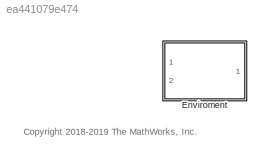
MODEL slx_ea441079e474
KIND library
CONFIG AbsTol = auto
CONFIG EnableMultiTasking = off
CONFIG FixedStep = auto
CONFIG MaxStep = auto
CONFIG MinStep = auto
CONFIG RelTol = 1e-3
CONFIG SampleTimeConstraint = Unconstrained
CONFIG Solver = VariableStepAuto
CONFIG SolverName = VariableStepAuto
CONFIG StartTime = 0.0
CONFIG StopTime = 10.0
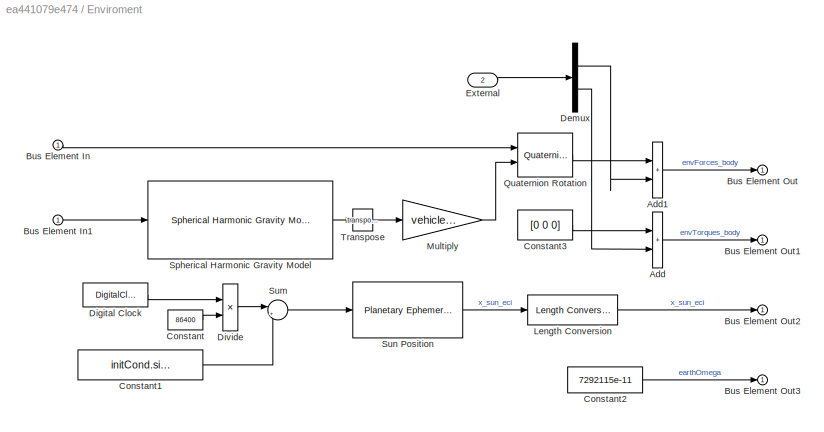
BLOCK [SubSystem] Enviroment
  Ports = [2, 1]
  RequestExecContextInheritance = off
BLOCK [Sum] Enviroment/Add
  IconShape = rectangular
  Ports = [2, 1]
BLOCK [Sum] Enviroment/Add1
  IconShape = rectangular
  Ports = [2, 1]
BLOCK [Inport] Enviroment/Bus Element In
BLOCK [Inport] Enviroment/Bus Element In1
BLOCK [Outport] Enviroment/Bus Element Out
  VectorParamsAs1DForOutWhenUnconnected = off
BLOCK [Outport] Enviroment/Bus Element Out1
  VectorParamsAs1DForOutWhenUnconnected = off
BLOCK [Outport] Enviroment/Bus Element Out2
  VectorParamsAs1DForOutWhenUnconnected = off
BLOCK [Outport] Enviroment/Bus Element Out3
  VectorParamsAs1DForOutWhenUnconnected = off
BLOCK [Constant] Enviroment/Constant
  Value = 86400
BLOCK [Constant] Enviroment/Constant1
  Value = initCond.simStartDate.JD
BLOCK [Constant] Enviroment/Constant2
  Value = 7292115e-11
BLOCK [Constant] Enviroment/Constant3
  Value = [0 0 0]
BLOCK [Demux] Enviroment/Demux
  Outputs = 2
  Ports = [1, 2]
BLOCK [DigitalClock] Enviroment/Digital Clock
  SampleTime = CubeSatTimeStep
BLOCK [Product] Enviroment/Divide
  Inputs = */
  Ports = [2, 1]
BLOCK [Inport] Enviroment/External
  Port = 2
BLOCK [Reference] Enviroment/Length Conversion  REF=aerolibconvert2/Length Conversion
  Ports = [1, 1]
  SourceBlock = aerolibconvert2/Length Conversion
  SourceProductBaseCode = AE
  SourceType = Length Conversion
BLOCK [Gain] Enviroment/Multiply
  Gain = vehicle.mass
BLOCK [Reference] Enviroment/Quaternion Rotation  REF=aerolibutil/Quaternion
Rotation
  Ports = [2, 1]
  SourceBlock = aerolibutil/Quaternion\nRotation
  SourceProductBaseCode = AE
  SourceType = Quaternion Rotation
BLOCK [Reference] Enviroment/Spherical Harmonic Gravity Model  REF=aerolibgravity2/Spherical Harmonic Gravity Model
  Ports = [1, 1]
  SourceBlock = aerolibgravity2/Spherical Harmonic Gravity Model
  SourceProductBaseCode = AE
  SourceType = Spherical Harmonic Gravity Model
BLOCK [Sum] Enviroment/Sum
  Inputs = |++
  Ports = [2, 1]
BLOCK [Reference] Enviroment/Sun Position  REF=aerolibcelestial/Planetary Ephemeris
  Ports = [1, 1]
  SourceBlock = aerolibcelestial/Planetary Ephemeris
  SourceProductBaseCode = AE
  SourceType = PlanetaryEphemeris
BLOCK [Math] Enviroment/Transpose
  Operator = transpose
  Ports = [1, 1]
  SignedPower = on
ANNOTATION (root): <copyright redacted>
LINE Enviroment/Add1:1 -> Enviroment/Bus Element Out:1
LINE Enviroment/Add:1 -> Enviroment/Bus Element Out1:1
LINE Enviroment/Bus Element In1:1 -> Enviroment/Spherical Harmonic Gravity Model:1
LINE Enviroment/Bus Element In:1 -> Enviroment/Quaternion Rotation:1
LINE Enviroment/Constant1:1 -> Enviroment/Sum:2
LINE Enviroment/Constant2:1 -> Enviroment/Bus Element Out3:1
LINE Enviroment/Constant3:1 -> Enviroment/Add:1
LINE Enviroment/Constant:1 -> Enviroment/Divide:2
LINE Enviroment/Demux:1 -> Enviroment/Add1:2
LINE Enviroment/Demux:2 -> Enviroment/Add:2
LINE Enviroment/Digital Clock:1 -> Enviroment/Divide:1
LINE Enviroment/Divide:1 -> Enviroment/Sum:1
LINE Enviroment/External:1 -> Enviroment/Demux:1
LINE Enviroment/Length Conversion:1 -> Enviroment/Bus Element Out2:1
LINE Enviroment/Multiply:1 -> Enviroment/Quaternion Rotation:2
LINE Enviroment/Quaternion Rotation:1 -> Enviroment/Add1:1
LINE Enviroment/Spherical Harmonic Gravity Model:1 -> Enviroment/Transpose:1
LINE Enviroment/Sum:1 -> Enviroment/Sun Position:1
LINE Enviroment/Sun Position:1 -> Enviroment/Length Conversion:1
LINE Enviroment/Transpose:1 -> Enviroment/Multiply:1
